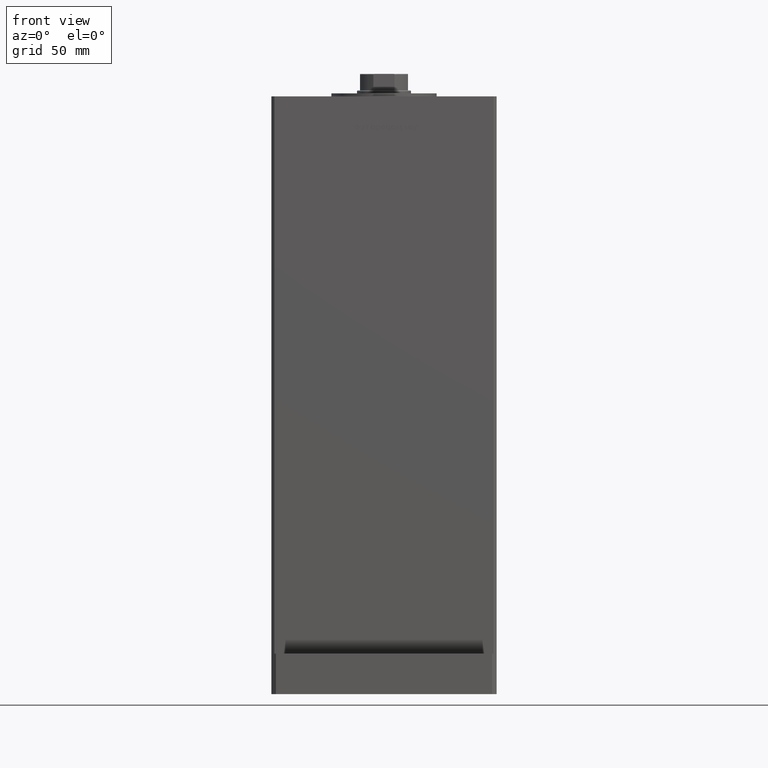
[diagram: clean part render]
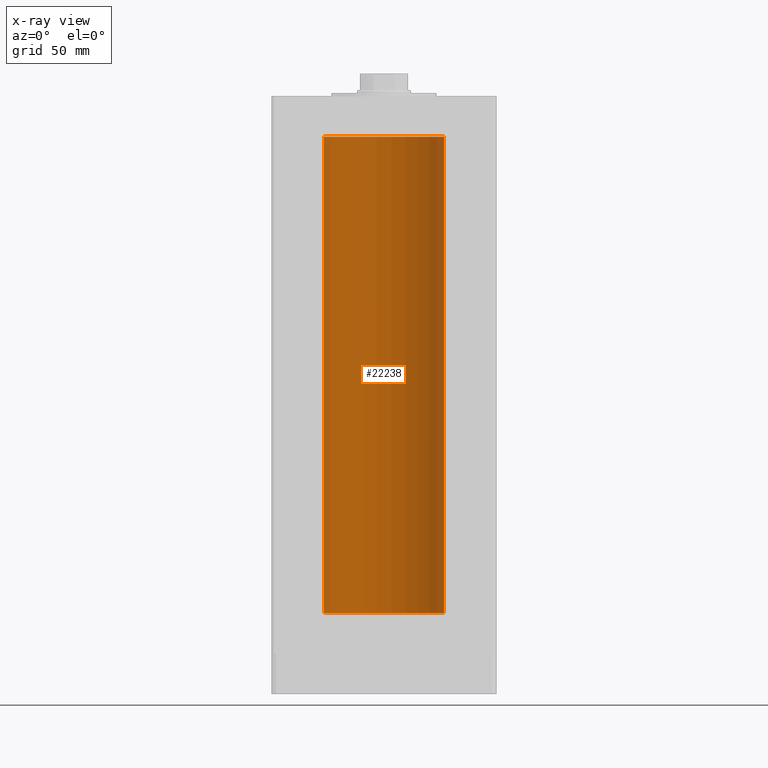
[diagram: x-ray — body ghosted, one internal face saturated and labeled with its STEP entity id]
A machine part, front view, then the same camera in x-ray: the body is ghosted and one INTERNAL B-rep face — a face not visible from any outside direction — is saturated and labeled: STEP entity #22238.
In plain terms, the highlighted cylindrical surface (partial cylindrical patch) has radius 40 mm, axis along (-0, -0, -1).
Its self-contained STEP definition (entity closure, byte-faithful):
#5102 = DIRECTION ( 'NONE',  ( -0.000000000000000000, 0.000000000000000000, 1.000000000000000000 ) ) ;
#5898 = VERTEX_POINT ( 'NONE', #25932 ) ;
#6177 = CARTESIAN_POINT ( 'NONE',  ( 0.000000000000000000, 0.000000000000000000, 0.000000000000000000 ) ) ;
#6770 = CARTESIAN_POINT ( 'NONE',  ( 40.00000000000000000, 4.898587196589413026E-15, 317.0000000000000000 ) ) ;
#7071 = EDGE_CURVE ( 'NONE', #54811, #28862, #50650, .T. ) ;
#16148 = EDGE_CURVE ( 'NONE', #54811, #37820, #47242, .T. ) ;
#16560 = DIRECTION ( 'NONE',  ( -0.000000000000000000, -0.000000000000000000, -1.000000000000000000 ) ) ;
#16918 = DIRECTION ( 'NONE',  ( -0.000000000000000000, -0.000000000000000000, -1.000000000000000000 ) ) ;
#18106 = DIRECTION ( 'NONE',  ( 1.000000000000000000, 0.000000000000000000, 0.000000000000000000 ) ) ;
#19692 = DIRECTION ( 'NONE',  ( -1.000000000000000000, 0.000000000000000000, 0.000000000000000000 ) ) ;
#19967 = DIRECTION ( 'NONE',  ( -0.000000000000000000, -0.000000000000000000, -1.000000000000000000 ) ) ;
#20456 = CARTESIAN_POINT ( 'NONE',  ( 40.00000000000000000, 4.898587196589413026E-15, 317.0000000000000000 ) ) ;
#20725 = AXIS2_PLACEMENT_3D ( 'NONE', #43075, #5102, #34227 ) ;
#21869 = VECTOR ( 'NONE', #16918, 1000.000000000000000 ) ;
#22238 = ADVANCED_FACE ( 'NONE', ( #28285 ), #28557, .F. ) ;
#22665 = CARTESIAN_POINT ( 'NONE',  ( -40.00000000000000000, 0.000000000000000000, 317.0000000000000000 ) ) ;
#23567 = AXIS2_PLACEMENT_3D ( 'NONE', #6177, #47470, #18106 ) ;
#25620 = EDGE_CURVE ( 'NONE', #28862, #5898, #46529, .T. ) ;
#25932 = CARTESIAN_POINT ( 'NONE',  ( -40.00000000000000000, 0.000000000000000000, 0.000000000000000000 ) ) ;
#27325 = ORIENTED_EDGE ( 'NONE', *, *, #7071, .F. ) ;
#28285 = FACE_OUTER_BOUND ( 'NONE', #39135, .T. ) ;
#28416 = VECTOR ( 'NONE', #16560, 1000.000000000000000 ) ;
#28557 = CYLINDRICAL_SURFACE ( 'NONE', #53520, 40.00000000000000000 ) ;
#28862 = VERTEX_POINT ( 'NONE', #39296 ) ;
#28966 = EDGE_CURVE ( 'NONE', #37820, #5898, #42937, .T. ) ;
#29348 = ORIENTED_EDGE ( 'NONE', *, *, #28966, .T. ) ;
#34227 = DIRECTION ( 'NONE',  ( 1.000000000000000000, 0.000000000000000000, 0.000000000000000000 ) ) ;
#37820 = VERTEX_POINT ( 'NONE', #22665 ) ;
#39135 = EDGE_LOOP ( 'NONE', ( #27325, #41765, #29348, #43858 ) ) ;
#39296 = CARTESIAN_POINT ( 'NONE',  ( 40.00000000000000000, 4.898587196589413026E-15, 0.000000000000000000 ) ) ;
#41765 = ORIENTED_EDGE ( 'NONE', *, *, #16148, .T. ) ;
#42557 = CARTESIAN_POINT ( 'NONE',  ( -40.00000000000000000, 0.000000000000000000, 317.0000000000000000 ) ) ;
#42937 = LINE ( 'NONE', #42557, #21869 ) ;
#43075 = CARTESIAN_POINT ( 'NONE',  ( 0.000000000000000000, 0.000000000000000000, 317.0000000000000000 ) ) ;
#43858 = ORIENTED_EDGE ( 'NONE', *, *, #25620, .F. ) ;
#45720 = CARTESIAN_POINT ( 'NONE',  ( 0.000000000000000000, 0.000000000000000000, 317.0000000000000000 ) ) ;
#46529 = CIRCLE ( 'NONE', #23567, 40.00000000000000000 ) ;
#47242 = CIRCLE ( 'NONE', #20725, 40.00000000000000000 ) ;
#47470 = DIRECTION ( 'NONE',  ( -0.000000000000000000, 0.000000000000000000, 1.000000000000000000 ) ) ;
#50650 = LINE ( 'NONE', #20456, #28416 ) ;
#53520 = AXIS2_PLACEMENT_3D ( 'NONE', #45720, #19967, #19692 ) ;
#54811 = VERTEX_POINT ( 'NONE', #6770 ) ;